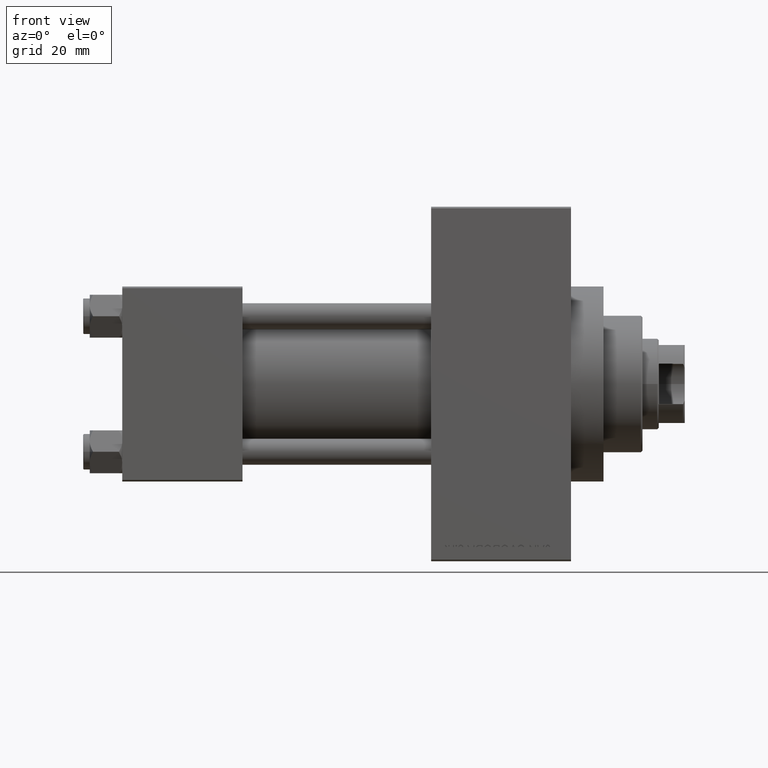
[diagram: clean part render]
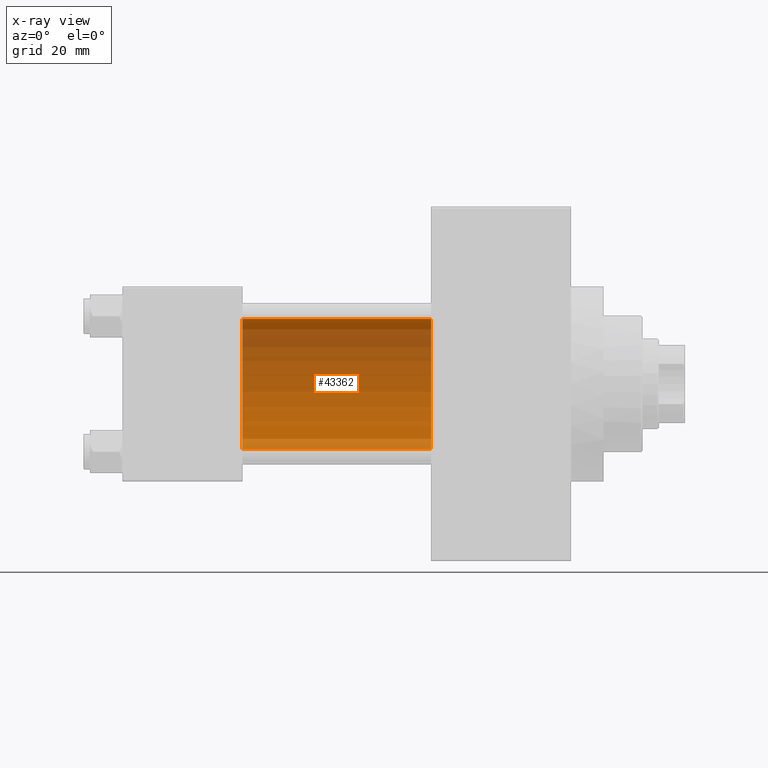
[diagram: x-ray — body ghosted, one internal face saturated and labeled with its STEP entity id]
A machine part, front view, then the same camera in x-ray: the body is ghosted and one INTERNAL B-rep face — a face not visible from any outside direction — is saturated and labeled: STEP entity #43362.
In plain terms, the highlighted cylindrical surface (partial cylindrical patch) has radius 20 mm, axis along (-1, -0, -0).
Its self-contained STEP definition (entity closure, byte-faithful):
#212 = CARTESIAN_POINT ( 'NONE',  ( 95.00000000000000000, -2.602085213965210642E-15, 0.000000000000000000 ) ) ;
#1586 = LINE ( 'NONE', #35462, #39799 ) ;
#3724 = AXIS2_PLACEMENT_3D ( 'NONE', #18741, #19475, #48247 ) ;
#6402 = EDGE_CURVE ( 'NONE', #27358, #6888, #1586, .T. ) ;
#6888 = VERTEX_POINT ( 'NONE', #25635 ) ;
#7157 = CARTESIAN_POINT ( 'NONE',  ( 95.00000000000000000, -1.527916156705046464E-16, -20.00000000000000000 ) ) ;
#8173 = EDGE_LOOP ( 'NONE', ( #45000, #28714, #40692, #32009 ) ) ;
#8420 = CYLINDRICAL_SURFACE ( 'NONE', #17277, 20.00000000000000000 ) ;
#8654 = DIRECTION ( 'NONE',  ( -1.000000000000000000, -0.000000000000000000, -0.000000000000000000 ) ) ;
#9978 = EDGE_CURVE ( 'NONE', #28615, #36740, #39503, .T. ) ;
#14785 = EDGE_CURVE ( 'NONE', #6888, #36740, #14849, .T. ) ;
#14849 = CIRCLE ( 'NONE', #3724, 20.00000000000000000 ) ;
#16853 = EDGE_CURVE ( 'NONE', #27358, #28615, #45924, .T. ) ;
#17277 = AXIS2_PLACEMENT_3D ( 'NONE', #46272, #8654, #41785 ) ;
#18741 = CARTESIAN_POINT ( 'NONE',  ( 37.00000000000000000, -2.602085213965210642E-15, 0.000000000000000000 ) ) ;
#19475 = DIRECTION ( 'NONE',  ( 1.000000000000000000, 0.000000000000000000, 0.000000000000000000 ) ) ;
#19713 = AXIS2_PLACEMENT_3D ( 'NONE', #212, #26834, #42007 ) ;
#20323 = CARTESIAN_POINT ( 'NONE',  ( 95.00000000000000000, -2.602085213965210642E-15, 20.00000000000000000 ) ) ;
#20589 = DIRECTION ( 'NONE',  ( -1.000000000000000000, -0.000000000000000000, -0.000000000000000000 ) ) ;
#24264 = DIRECTION ( 'NONE',  ( -1.000000000000000000, -0.000000000000000000, -0.000000000000000000 ) ) ;
#25635 = CARTESIAN_POINT ( 'NONE',  ( 37.00000000000000000, -1.527916156705046464E-16, -20.00000000000000000 ) ) ;
#26834 = DIRECTION ( 'NONE',  ( 1.000000000000000000, 0.000000000000000000, 0.000000000000000000 ) ) ;
#27358 = VERTEX_POINT ( 'NONE', #7157 ) ;
#28615 = VERTEX_POINT ( 'NONE', #20323 ) ;
#28714 = ORIENTED_EDGE ( 'NONE', *, *, #16853, .T. ) ;
#32009 = ORIENTED_EDGE ( 'NONE', *, *, #14785, .F. ) ;
#35304 = FACE_OUTER_BOUND ( 'NONE', #8173, .T. ) ;
#35462 = CARTESIAN_POINT ( 'NONE',  ( 95.00000000000000000, -1.527916156705046464E-16, -20.00000000000000000 ) ) ;
#36740 = VERTEX_POINT ( 'NONE', #48251 ) ;
#39503 = LINE ( 'NONE', #47978, #41402 ) ;
#39799 = VECTOR ( 'NONE', #24264, 1000.000000000000000 ) ;
#40692 = ORIENTED_EDGE ( 'NONE', *, *, #9978, .T. ) ;
#41402 = VECTOR ( 'NONE', #20589, 1000.000000000000000 ) ;
#41785 = DIRECTION ( 'NONE',  ( 0.000000000000000000, 0.000000000000000000, 1.000000000000000000 ) ) ;
#42007 = DIRECTION ( 'NONE',  ( 0.000000000000000000, 0.000000000000000000, -1.000000000000000000 ) ) ;
#43362 = ADVANCED_FACE ( 'NONE', ( #35304 ), #8420, .F. ) ;
#45000 = ORIENTED_EDGE ( 'NONE', *, *, #6402, .F. ) ;
#45924 = CIRCLE ( 'NONE', #19713, 20.00000000000000000 ) ;
#46272 = CARTESIAN_POINT ( 'NONE',  ( 95.00000000000000000, -2.602085213965210642E-15, 0.000000000000000000 ) ) ;
#47978 = CARTESIAN_POINT ( 'NONE',  ( 95.00000000000000000, -2.602085213965210642E-15, 20.00000000000000000 ) ) ;
#48247 = DIRECTION ( 'NONE',  ( 0.000000000000000000, 0.000000000000000000, -1.000000000000000000 ) ) ;
#48251 = CARTESIAN_POINT ( 'NONE',  ( 37.00000000000000000, -2.602085213965210642E-15, 20.00000000000000000 ) ) ;